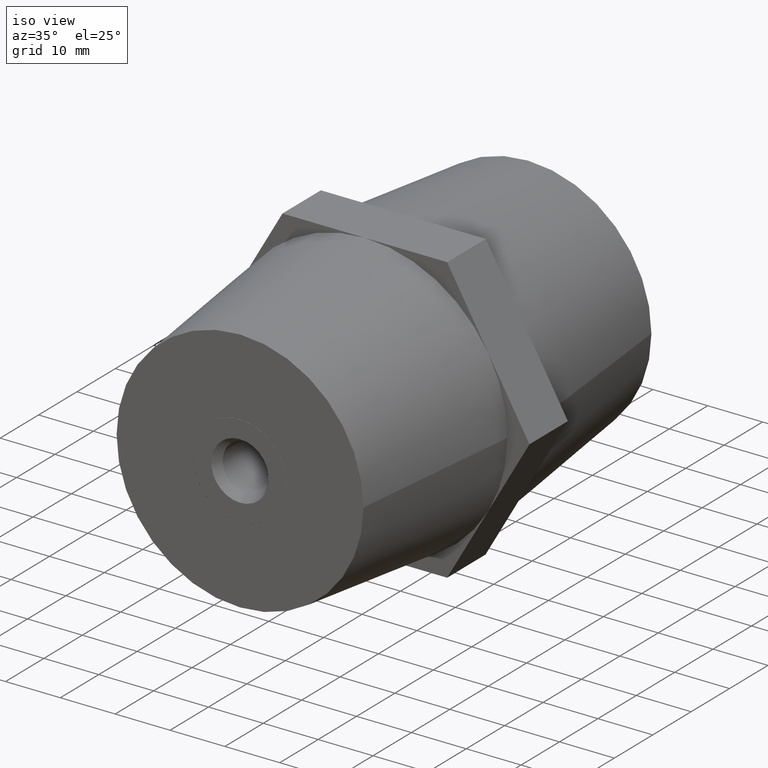
[diagram: clean part render]
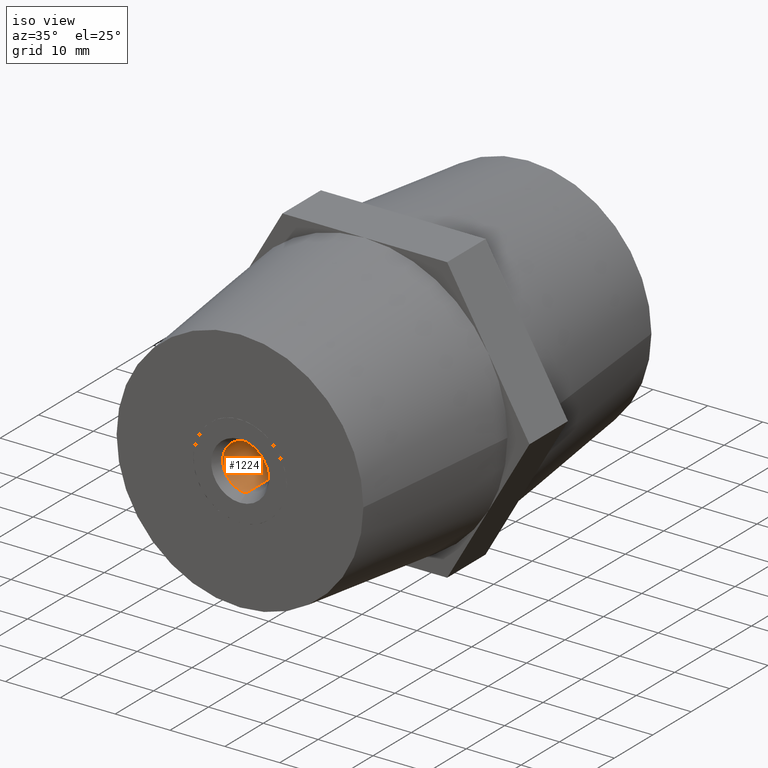
[diagram: same view with one face highlighted and labeled with its STEP entity id]
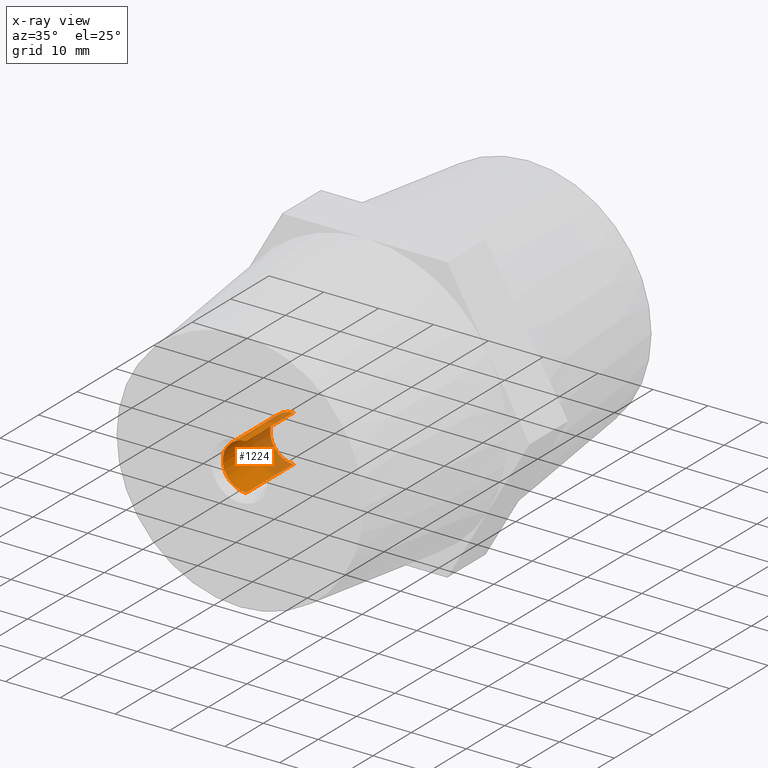
[diagram: x-ray of the same camera — body ghosted, the highlighted face saturated]
A machine part, iso view. The second image highlights one B-rep face of the part: STEP entity #1224.
The next image is the same camera in x-ray: the body ghosted, the highlighted face saturated — about 32% of this face is hidden behind the body in this view.
In plain terms, the highlighted cylindrical surface (edge-blend (fillet) strip) has radius 4.25 mm, axis along (-0, -1, 0).
Its self-contained STEP definition (entity closure, byte-faithful):
#96 = DIRECTION ( 'NONE',  ( 0.0000000000000000000, 0.0000000000000000000, 1.000000000000000000 ) ) ;
#368 = CARTESIAN_POINT ( 'NONE',  ( 0.0000000000000000000, 17.00000000000000000, 0.0000000000000000000 ) ) ;
#449 = LINE ( 'NONE', #1720, #839 ) ;
#554 = CARTESIAN_POINT ( 'NONE',  ( 0.0000000000000000000, 15.43031442288250000, 4.250000000000000000 ) ) ;
#563 = CYLINDRICAL_SURFACE ( 'NONE', #1046, 4.250000000000000000 ) ;
#693 = DIRECTION ( 'NONE',  ( 0.0000000000000000000, 1.000000000000000000, 0.0000000000000000000 ) ) ;
#707 = CARTESIAN_POINT ( 'NONE',  ( 0.0000000000000000000, 3.050000000000000300, 0.0000000000000000000 ) ) ;
#712 = CARTESIAN_POINT ( 'NONE',  ( 5.204748896376250700E-016, 17.00000000000000000, -4.250000000000000000 ) ) ;
#773 = ORIENTED_EDGE ( 'NONE', *, *, #2898, .T. ) ;
#839 = VECTOR ( 'NONE', #2039, 1000.000000000000000 ) ;
#975 = DIRECTION ( 'NONE',  ( 0.0000000000000000000, 0.0000000000000000000, 1.000000000000000000 ) ) ;
#1046 = AXIS2_PLACEMENT_3D ( 'NONE', #368, #3701, #96 ) ;
#1080 = EDGE_LOOP ( 'NONE', ( #3724, #2210, #773, #1107 ) ) ;
#1107 = ORIENTED_EDGE ( 'NONE', *, *, #3492, .T. ) ;
#1224 = ADVANCED_FACE ( 'NONE', ( #2110 ), #563, .F. ) ;
#1333 = DIRECTION ( 'NONE',  ( 0.0000000000000000000, 1.000000000000000000, 0.0000000000000000000 ) ) ;
#1468 = CIRCLE ( 'NONE', #3972, 4.250000000000000000 ) ;
#1527 = VECTOR ( 'NONE', #693, 1000.000000000000000 ) ;
#1590 = CARTESIAN_POINT ( 'NONE',  ( 0.0000000000000000000, 15.43031442288250000, 0.0000000000000000000 ) ) ;
#1637 = EDGE_CURVE ( 'NONE', #3607, #2192, #2780, .T. ) ;
#1720 = CARTESIAN_POINT ( 'NONE',  ( 0.0000000000000000000, 17.00000000000000000, 4.250000000000000000 ) ) ;
#1865 = DIRECTION ( 'NONE',  ( 0.0000000000000000000, 1.000000000000000000, 0.0000000000000000000 ) ) ;
#1945 = CARTESIAN_POINT ( 'NONE',  ( 5.204748896376250700E-016, 15.43031442288250000, -4.250000000000000000 ) ) ;
#2039 = DIRECTION ( 'NONE',  ( 0.0000000000000000000, 1.000000000000000000, 0.0000000000000000000 ) ) ;
#2110 = FACE_OUTER_BOUND ( 'NONE', #1080, .T. ) ;
#2192 = VERTEX_POINT ( 'NONE', #1945 ) ;
#2210 = ORIENTED_EDGE ( 'NONE', *, *, #3596, .F. ) ;
#2327 = VERTEX_POINT ( 'NONE', #2555 ) ;
#2555 = CARTESIAN_POINT ( 'NONE',  ( 0.0000000000000000000, 3.050000000000000300, 4.250000000000000000 ) ) ;
#2780 = LINE ( 'NONE', #712, #1527 ) ;
#2864 = DIRECTION ( 'NONE',  ( 0.0000000000000000000, 0.0000000000000000000, 1.000000000000000000 ) ) ;
#2898 = EDGE_CURVE ( 'NONE', #2327, #3042, #449, .T. ) ;
#3042 = VERTEX_POINT ( 'NONE', #554 ) ;
#3492 = EDGE_CURVE ( 'NONE', #3042, #2192, #1468, .T. ) ;
#3596 = EDGE_CURVE ( 'NONE', #2327, #3607, #3834, .T. ) ;
#3607 = VERTEX_POINT ( 'NONE', #3742 ) ;
#3620 = AXIS2_PLACEMENT_3D ( 'NONE', #707, #1333, #2864 ) ;
#3701 = DIRECTION ( 'NONE',  ( 0.0000000000000000000, 1.000000000000000000, 0.0000000000000000000 ) ) ;
#3724 = ORIENTED_EDGE ( 'NONE', *, *, #1637, .F. ) ;
#3742 = CARTESIAN_POINT ( 'NONE',  ( 5.204748896376250700E-016, 3.050000000000000300, -4.250000000000000000 ) ) ;
#3834 = CIRCLE ( 'NONE', #3620, 4.250000000000000000 ) ;
#3972 = AXIS2_PLACEMENT_3D ( 'NONE', #1590, #1865, #975 ) ;